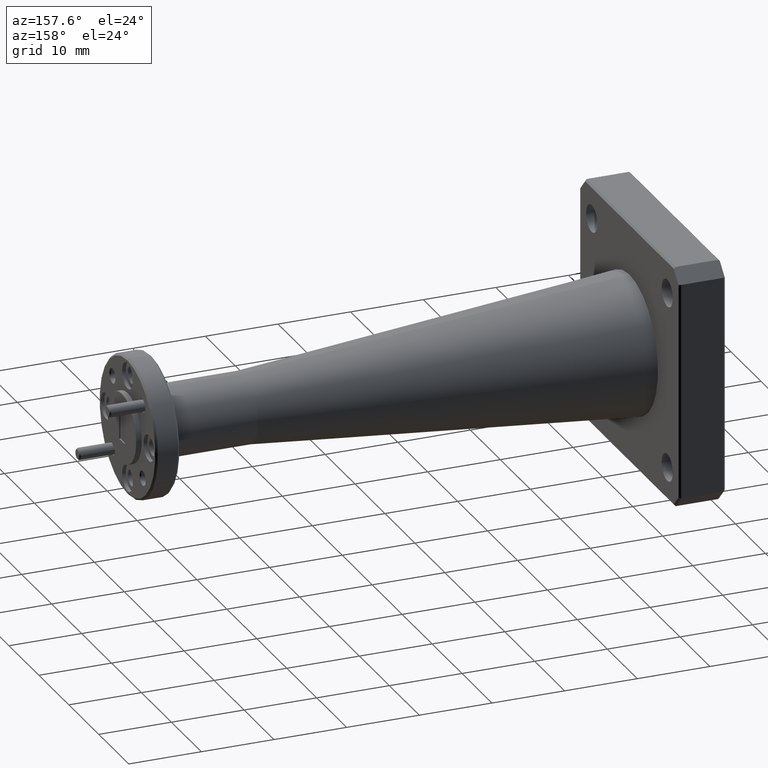
[diagram: clean part render]
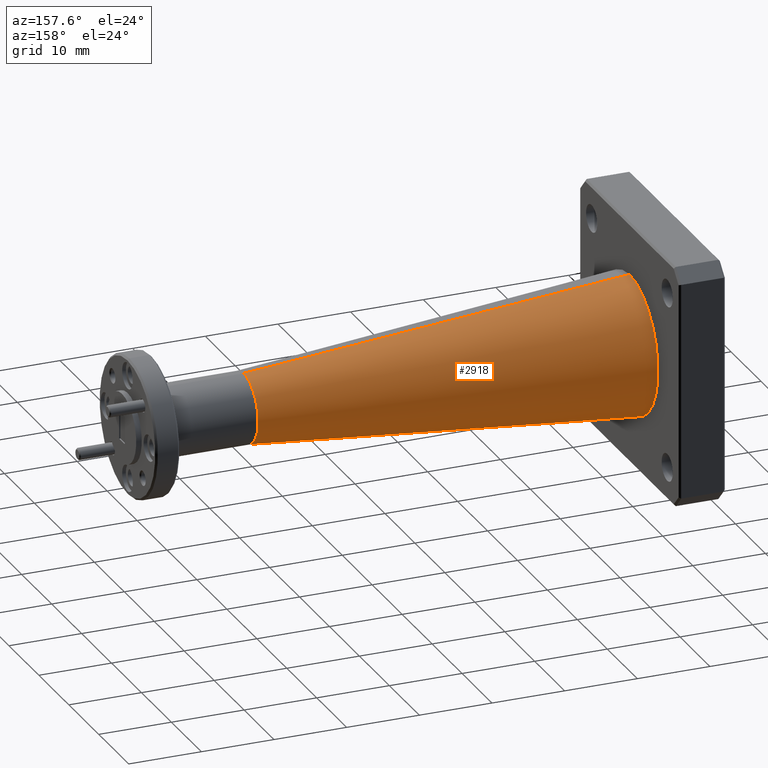
[diagram: same view with one face highlighted and labeled with its STEP entity id]
A machine part, auxiliary view. The second image highlights one B-rep face of the part: STEP entity #2918.
In plain terms, the highlighted conical surface has half-angle 5.126 deg.
Its self-contained STEP definition (entity closure, byte-faithful):
#26 = DIRECTION ( 'NONE',  ( -0.9959999256551445000, 1.094271639567499400E-017, -0.08935406031595181900 ) ) ;
#32 = AXIS2_PLACEMENT_3D ( 'NONE', #2934, #1468, #699 ) ;
#161 = EDGE_LOOP ( 'NONE', ( #2240, #2358, #380, #971 ) ) ;
#165 = CARTESIAN_POINT ( 'NONE',  ( 2.340000000000000300, 3.444319122601932800E-017, -0.1875000000000002800 ) ) ;
#176 = EDGE_CURVE ( 'NONE', #1618, #2541, #3139, .T. ) ;
#217 = DIRECTION ( 'NONE',  ( -1.000000000000000000, -0.0000000000000000000, -0.0000000000000000000 ) ) ;
#228 = CARTESIAN_POINT ( 'NONE',  ( 0.2500000000000001100, 0.0000000000000000000, 0.0000000000000000000 ) ) ;
#380 = ORIENTED_EDGE ( 'NONE', *, *, #1156, .F. ) ;
#489 = VERTEX_POINT ( 'NONE', #2140 ) ;
#699 = DIRECTION ( 'NONE',  ( 0.0000000000000000000, 0.0000000000000000000, 1.000000000000000000 ) ) ;
#909 = DIRECTION ( 'NONE',  ( -1.000000000000000000, -0.0000000000000000000, -0.0000000000000000000 ) ) ;
#971 = ORIENTED_EDGE ( 'NONE', *, *, #2359, .F. ) ;
#973 = VECTOR ( 'NONE', #26, 39.37007874015748900 ) ;
#991 = CIRCLE ( 'NONE', #1690, 0.3750000000000000600 ) ;
#1156 = EDGE_CURVE ( 'NONE', #489, #2541, #991, .T. ) ;
#1220 = DIRECTION ( 'NONE',  ( 0.0000000000000000000, 0.0000000000000000000, 1.000000000000000000 ) ) ;
#1442 = DIRECTION ( 'NONE',  ( -0.9959999256551445000, 0.0000000000000000000, 0.08935406031595181900 ) ) ;
#1468 = DIRECTION ( 'NONE',  ( -1.000000000000000000, -0.0000000000000000000, -0.0000000000000000000 ) ) ;
#1618 = VERTEX_POINT ( 'NONE', #165 ) ;
#1656 = CARTESIAN_POINT ( 'NONE',  ( 2.340000000000000300, 0.0000000000000000000, 0.1875000000000002800 ) ) ;
#1690 = AXIS2_PLACEMENT_3D ( 'NONE', #228, #217, #1220 ) ;
#1763 = FACE_OUTER_BOUND ( 'NONE', #161, .T. ) ;
#1832 = CONICAL_SURFACE ( 'NONE', #2595, 0.1875000000000002800, 0.08947339223384011300 ) ;
#1909 = EDGE_CURVE ( 'NONE', #2667, #1618, #2971, .T. ) ;
#1911 = LINE ( 'NONE', #1656, #2416 ) ;
#2140 = CARTESIAN_POINT ( 'NONE',  ( 0.2500000000000001100, 0.0000000000000000000, 0.3750000000000000600 ) ) ;
#2154 = CARTESIAN_POINT ( 'NONE',  ( 2.340000000000000300, 0.0000000000000000000, 0.1875000000000002800 ) ) ;
#2240 = ORIENTED_EDGE ( 'NONE', *, *, #1909, .T. ) ;
#2358 = ORIENTED_EDGE ( 'NONE', *, *, #176, .T. ) ;
#2359 = EDGE_CURVE ( 'NONE', #2667, #489, #1911, .T. ) ;
#2416 = VECTOR ( 'NONE', #1442, 39.37007874015748900 ) ;
#2430 = DIRECTION ( 'NONE',  ( 0.0000000000000000000, 0.0000000000000000000, 1.000000000000000000 ) ) ;
#2541 = VERTEX_POINT ( 'NONE', #2990 ) ;
#2595 = AXIS2_PLACEMENT_3D ( 'NONE', #3095, #909, #2430 ) ;
#2667 = VERTEX_POINT ( 'NONE', #2154 ) ;
#2752 = CARTESIAN_POINT ( 'NONE',  ( 2.340000000000000300, 2.296212748401290800E-017, -0.1875000000000002800 ) ) ;
#2918 = ADVANCED_FACE ( 'NONE', ( #1763 ), #1832, .T. ) ;
#2934 = CARTESIAN_POINT ( 'NONE',  ( 2.340000000000000300, 0.0000000000000000000, 0.0000000000000000000 ) ) ;
#2971 = CIRCLE ( 'NONE', #32, 0.1875000000000002800 ) ;
#2990 = CARTESIAN_POINT ( 'NONE',  ( 0.2500000000000001100, 4.592425496802574200E-017, -0.3750000000000000600 ) ) ;
#3095 = CARTESIAN_POINT ( 'NONE',  ( 2.340000000000000300, 0.0000000000000000000, 0.0000000000000000000 ) ) ;
#3139 = LINE ( 'NONE', #2752, #973 ) ;